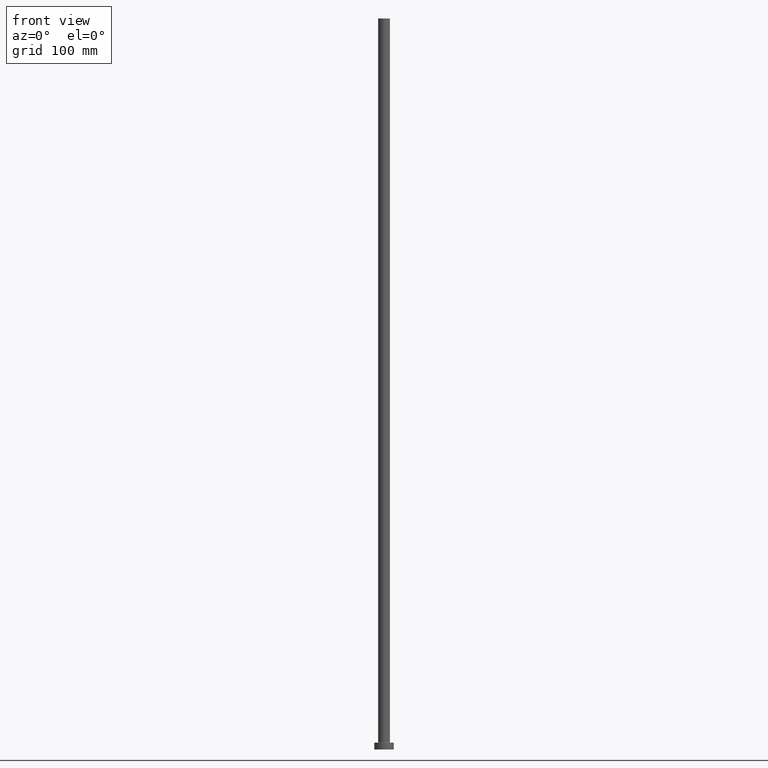
[diagram: clean part render]
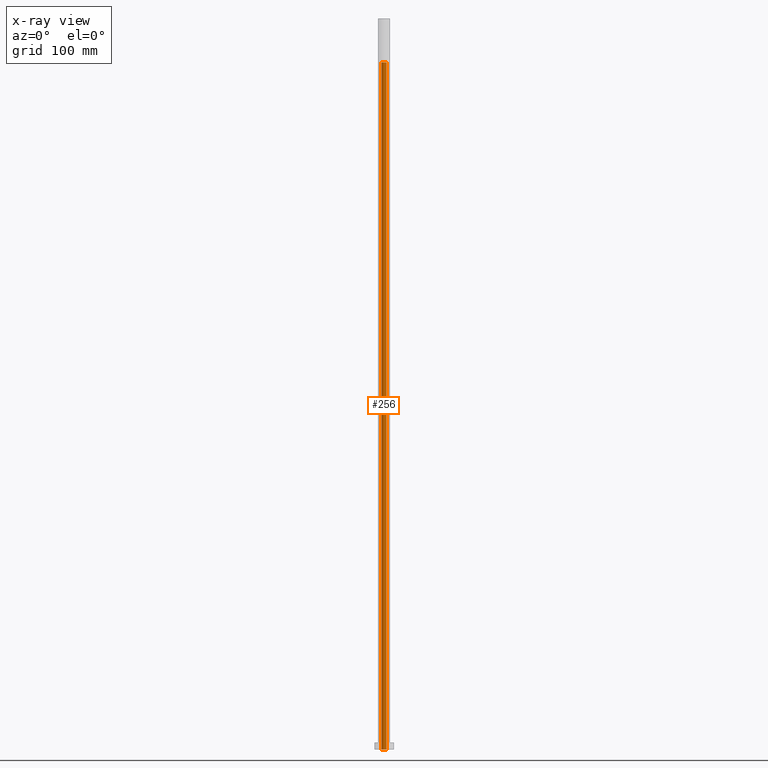
[diagram: x-ray — body ghosted, one internal face saturated and labeled with its STEP entity id]
A machine part, front view, then the same camera in x-ray: the body is ghosted and one INTERNAL B-rep face — a face not visible from any outside direction — is saturated and labeled: STEP entity #256.
In plain terms, the highlighted cylindrical surface (edge-blend (fillet) strip) has radius 2.65 mm, axis along (0, 0, -1).
Its self-contained STEP definition (entity closure, byte-faithful):
#15 = DIRECTION ( 'NONE',  ( 0.000000000000000000, 0.000000000000000000, -1.000000000000000000 ) ) ;
#18 = DIRECTION ( 'NONE',  ( 0.000000000000000000, 0.000000000000000000, -1.000000000000000000 ) ) ;
#37 = DIRECTION ( 'NONE',  ( -0.000000000000000000, -0.000000000000000000, -1.000000000000000000 ) ) ;
#54 = VECTOR ( 'NONE', #15, 1000.000000000000000 ) ;
#68 = CARTESIAN_POINT ( 'NONE',  ( 2.649999999999999911, 3.245314017740485962E-16, 705.0000000000000000 ) ) ;
#71 = VERTEX_POINT ( 'NONE', #324 ) ;
#72 = EDGE_CURVE ( 'NONE', #364, #71, #206, .T. ) ;
#99 = CARTESIAN_POINT ( 'NONE',  ( 0.000000000000000000, 0.000000000000000000, 712.4953318805775098 ) ) ;
#126 = CARTESIAN_POINT ( 'NONE',  ( 0.000000000000000000, 0.000000000000000000, 705.0000000000000000 ) ) ;
#133 = EDGE_LOOP ( 'NONE', ( #207, #149, #181, #421 ) ) ;
#144 = CARTESIAN_POINT ( 'NONE',  ( 2.649999999999999911, 3.245314017740485962E-16, 0.000000000000000000 ) ) ;
#149 = ORIENTED_EDGE ( 'NONE', *, *, #152, .T. ) ;
#152 = EDGE_CURVE ( 'NONE', #289, #364, #334, .T. ) ;
#170 = CYLINDRICAL_SURFACE ( 'NONE', #190, 2.649999999999999911 ) ;
#181 = ORIENTED_EDGE ( 'NONE', *, *, #72, .T. ) ;
#182 = DIRECTION ( 'NONE',  ( 1.000000000000000000, 0.000000000000000000, 0.000000000000000000 ) ) ;
#189 = AXIS2_PLACEMENT_3D ( 'NONE', #461, #37, #182 ) ;
#190 = AXIS2_PLACEMENT_3D ( 'NONE', #99, #18, #341 ) ;
#206 = CIRCLE ( 'NONE', #189, 2.649999999999999911 ) ;
#207 = ORIENTED_EDGE ( 'NONE', *, *, #428, .T. ) ;
#213 = CARTESIAN_POINT ( 'NONE',  ( -2.649999999999999911, 0.000000000000000000, 712.4953318805775098 ) ) ;
#246 = FACE_OUTER_BOUND ( 'NONE', #133, .T. ) ;
#256 = ADVANCED_FACE ( 'NONE', ( #246 ), #170, .F. ) ;
#260 = EDGE_CURVE ( 'NONE', #358, #71, #346, .T. ) ;
#289 = VERTEX_POINT ( 'NONE', #68 ) ;
#291 = AXIS2_PLACEMENT_3D ( 'NONE', #126, #367, #441 ) ;
#324 = CARTESIAN_POINT ( 'NONE',  ( -2.649999999999999911, 0.000000000000000000, 0.000000000000000000 ) ) ;
#334 = LINE ( 'NONE', #443, #54 ) ;
#341 = DIRECTION ( 'NONE',  ( -1.000000000000000000, 0.000000000000000000, 0.000000000000000000 ) ) ;
#346 = LINE ( 'NONE', #213, #357 ) ;
#357 = VECTOR ( 'NONE', #384, 1000.000000000000000 ) ;
#358 = VERTEX_POINT ( 'NONE', #458 ) ;
#364 = VERTEX_POINT ( 'NONE', #144 ) ;
#367 = DIRECTION ( 'NONE',  ( 0.000000000000000000, 0.000000000000000000, 1.000000000000000000 ) ) ;
#384 = DIRECTION ( 'NONE',  ( 0.000000000000000000, 0.000000000000000000, -1.000000000000000000 ) ) ;
#421 = ORIENTED_EDGE ( 'NONE', *, *, #260, .F. ) ;
#428 = EDGE_CURVE ( 'NONE', #358, #289, #447, .T. ) ;
#441 = DIRECTION ( 'NONE',  ( 1.000000000000000000, 0.000000000000000000, 0.000000000000000000 ) ) ;
#443 = CARTESIAN_POINT ( 'NONE',  ( 2.649999999999999911, 3.245314017740485962E-16, 712.4953318805775098 ) ) ;
#447 = CIRCLE ( 'NONE', #291, 2.649999999999999911 ) ;
#458 = CARTESIAN_POINT ( 'NONE',  ( -2.649999999999999911, 0.000000000000000000, 705.0000000000000000 ) ) ;
#461 = CARTESIAN_POINT ( 'NONE',  ( 0.000000000000000000, 0.000000000000000000, 0.000000000000000000 ) ) ;